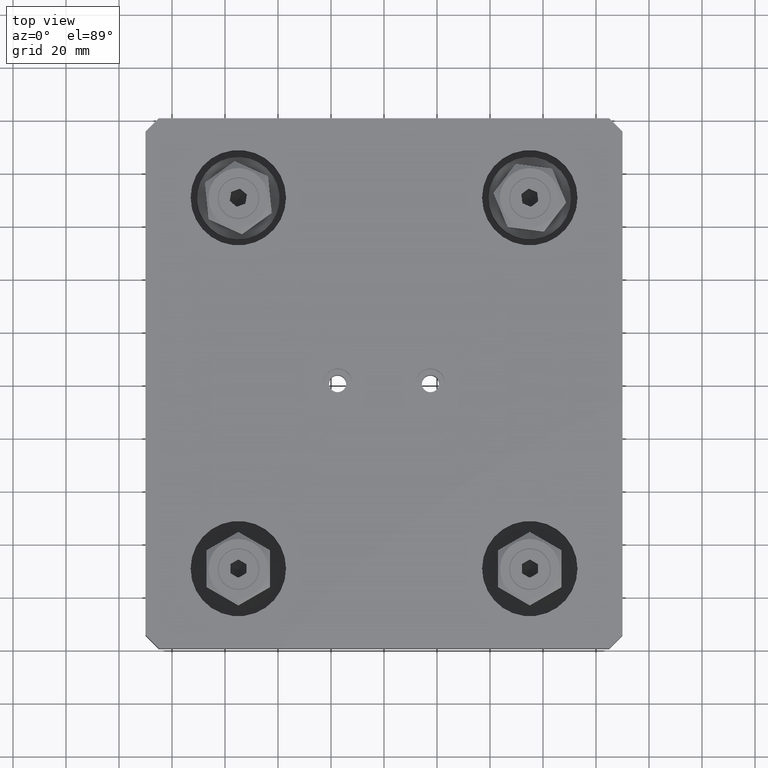
[diagram: clean part render]
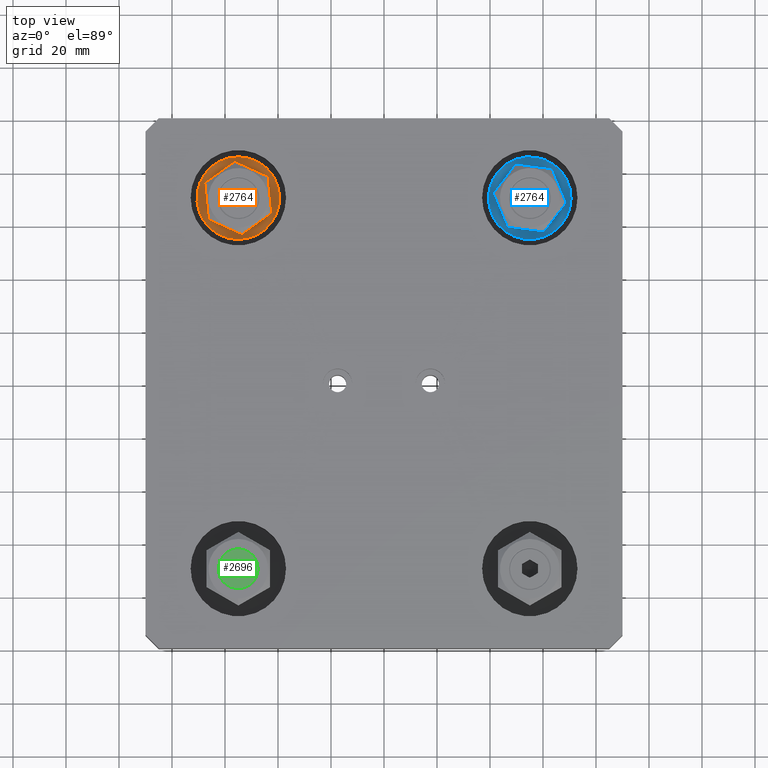
[diagram: same view with three faces highlighted in distinct colors, each labeled with its STEP entity id]
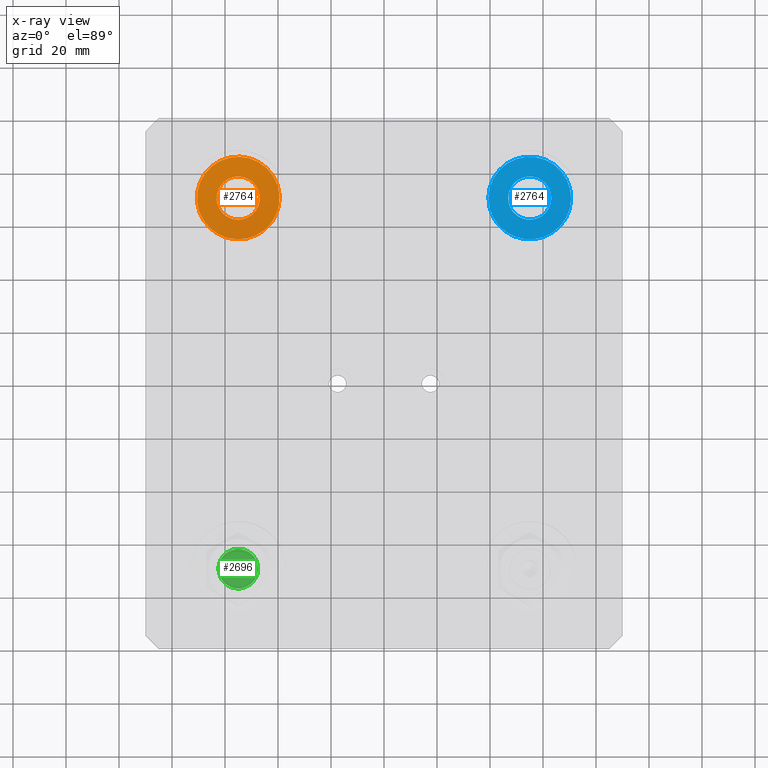
[diagram: x-ray of the same camera — body ghosted, the three highlighted faces saturated]
A machine part, top view with three faces highlighted in distinct colors.
The next image is the same camera in x-ray (body ghosted, the three faces saturated) — at least one of them is partly hidden behind the body in this view.
Their STEP definitions:

[orange] entity #2764 — the highlighted conical surface has half-angle 83.041 deg.
#99=CONICAL_SURFACE('',#3253,11.8742711850179,1.44933176903737);
#334=CIRCLE('',#3252,8.15);
#335=CIRCLE('',#3254,15.5985423700357);
#505=FACE_OUTER_BOUND('',#713,.T.);
#713=EDGE_LOOP('',(#2342,#2343,#2344,#2345));
#922=LINE('',#4835,#1137);
#1137=VECTOR('',#4015,11.8742711850179);
#1356=VERTEX_POINT('',#4830);
#1357=VERTEX_POINT('',#4834);
#1694=EDGE_CURVE('',#1356,#1356,#334,.T.);
#1695=EDGE_CURVE('',#1356,#1357,#922,.T.);
#1696=EDGE_CURVE('',#1357,#1357,#335,.T.);
#2342=ORIENTED_EDGE('',*,*,#1694,.T.);
#2343=ORIENTED_EDGE('',*,*,#1695,.T.);
#2344=ORIENTED_EDGE('',*,*,#1696,.F.);
#2345=ORIENTED_EDGE('',*,*,#1695,.F.);
#2764=ADVANCED_FACE('',(#505),#99,.F.);
#3252=AXIS2_PLACEMENT_3D('',#4832,#4011,#4012);
#3253=AXIS2_PLACEMENT_3D('',#4833,#4013,#4014);
#3254=AXIS2_PLACEMENT_3D('',#4836,#4016,#4017);
#4011=DIRECTION('center_axis',(-1.56640869658382E-17,1.,0.));
#4012=DIRECTION('ref_axis',(-1.,-1.76227961370045E-17,0.));
#4013=DIRECTION('center_axis',(1.56640869658382E-17,-1.,0.));
#4014=DIRECTION('ref_axis',(-1.,-1.76227961370045E-17,0.));
#4015=DIRECTION('',(0.992632245722649,-0.121166103971411,-1.21562390245469E-16));
#4016=DIRECTION('center_axis',(-1.56640869658382E-17,1.,0.));
#4017=DIRECTION('ref_axis',(-1.,-1.76227961370045E-17,0.));
#4830=CARTESIAN_POINT('',(8.15,0.909209692846688,-9.98087141305093E-16));
#4832=CARTESIAN_POINT('Origin',(-1.42419396989336E-17,0.909209692846688,
0.));
#4833=CARTESIAN_POINT('Origin',(-7.12096984946679E-18,0.454604846423344,
0.));
#4834=CARTESIAN_POINT('',(15.5985423700357,-4.16333634234434E-16,-1.91027049848286E-15));
#4835=CARTESIAN_POINT('',(11.8742711850179,0.454604846423344,-1.45417881989398E-15));
#4836=CARTESIAN_POINT('Origin',(7.70371977754894E-33,-5.55111512312578E-16,
0.));

[blue] entity #2764 — the highlighted conical surface has half-angle 83.041 deg.
#99=CONICAL_SURFACE('',#3253,11.8742711850179,1.44933176903737);
#334=CIRCLE('',#3252,8.15);
#335=CIRCLE('',#3254,15.5985423700357);
#505=FACE_OUTER_BOUND('',#713,.T.);
#713=EDGE_LOOP('',(#2342,#2343,#2344,#2345));
#922=LINE('',#4835,#1137);
#1137=VECTOR('',#4015,11.8742711850179);
#1356=VERTEX_POINT('',#4830);
#1357=VERTEX_POINT('',#4834);
#1694=EDGE_CURVE('',#1356,#1356,#334,.T.);
#1695=EDGE_CURVE('',#1356,#1357,#922,.T.);
#1696=EDGE_CURVE('',#1357,#1357,#335,.T.);
#2342=ORIENTED_EDGE('',*,*,#1694,.T.);
#2343=ORIENTED_EDGE('',*,*,#1695,.T.);
#2344=ORIENTED_EDGE('',*,*,#1696,.F.);
#2345=ORIENTED_EDGE('',*,*,#1695,.F.);
#2764=ADVANCED_FACE('',(#505),#99,.F.);
#3252=AXIS2_PLACEMENT_3D('',#4832,#4011,#4012);
#3253=AXIS2_PLACEMENT_3D('',#4833,#4013,#4014);
#3254=AXIS2_PLACEMENT_3D('',#4836,#4016,#4017);
#4011=DIRECTION('center_axis',(-1.56640869658382E-17,1.,0.));
#4012=DIRECTION('ref_axis',(-1.,-1.76227961370045E-17,0.));
#4013=DIRECTION('center_axis',(1.56640869658382E-17,-1.,0.));
#4014=DIRECTION('ref_axis',(-1.,-1.76227961370045E-17,0.));
#4015=DIRECTION('',(0.992632245722649,-0.121166103971411,-1.21562390245469E-16));
#4016=DIRECTION('center_axis',(-1.56640869658382E-17,1.,0.));
#4017=DIRECTION('ref_axis',(-1.,-1.76227961370045E-17,0.));
#4830=CARTESIAN_POINT('',(8.15,0.909209692846688,-9.98087141305093E-16));
#4832=CARTESIAN_POINT('Origin',(-1.42419396989336E-17,0.909209692846688,
0.));
#4833=CARTESIAN_POINT('Origin',(-7.12096984946679E-18,0.454604846423344,
0.));
#4834=CARTESIAN_POINT('',(15.5985423700357,-4.16333634234434E-16,-1.91027049848286E-15));
#4835=CARTESIAN_POINT('',(11.8742711850179,0.454604846423344,-1.45417881989398E-15));
#4836=CARTESIAN_POINT('Origin',(7.70371977754894E-33,-5.55111512312578E-16,
0.));

[green] entity #2696 — the highlighted planar face has unit normal (0, 0, -1).
#209=FACE_BOUND('',#630,.T.);
#278=CIRCLE('',#3123,7.5);
#437=FACE_OUTER_BOUND('',#629,.T.);
#629=EDGE_LOOP('',(#2073));
#630=EDGE_LOOP('',(#2074,#2075,#2076,#2077,#2078,#2079));
#829=LINE('',#4484,#1044);
#831=LINE('',#4488,#1046);
#833=LINE('',#4492,#1048);
#835=LINE('',#4496,#1050);
#837=LINE('',#4500,#1052);
#839=LINE('',#4503,#1054);
#1044=VECTOR('',#3606,10.);
#1046=VECTOR('',#3610,10.);
#1048=VECTOR('',#3614,10.);
#1050=VECTOR('',#3618,10.);
#1052=VECTOR('',#3622,10.);
#1054=VECTOR('',#3626,10.);
#1256=VERTEX_POINT('',#4481);
#1257=VERTEX_POINT('',#4483);
#1258=VERTEX_POINT('',#4487);
#1259=VERTEX_POINT('',#4491);
#1260=VERTEX_POINT('',#4495);
#1261=VERTEX_POINT('',#4499);
#1275=VERTEX_POINT('',#4544);
#1532=EDGE_CURVE('',#1257,#1256,#829,.T.);
#1534=EDGE_CURVE('',#1258,#1257,#831,.T.);
#1536=EDGE_CURVE('',#1259,#1258,#833,.T.);
#1538=EDGE_CURVE('',#1260,#1259,#835,.T.);
#1540=EDGE_CURVE('',#1261,#1260,#837,.T.);
#1542=EDGE_CURVE('',#1256,#1261,#839,.T.);
#1562=EDGE_CURVE('',#1275,#1275,#278,.T.);
#2073=ORIENTED_EDGE('',*,*,#1562,.F.);
#2074=ORIENTED_EDGE('',*,*,#1532,.T.);
#2075=ORIENTED_EDGE('',*,*,#1542,.T.);
#2076=ORIENTED_EDGE('',*,*,#1540,.T.);
#2077=ORIENTED_EDGE('',*,*,#1538,.T.);
#2078=ORIENTED_EDGE('',*,*,#1536,.T.);
#2079=ORIENTED_EDGE('',*,*,#1534,.T.);
#2573=PLANE('',#3125);
#2696=ADVANCED_FACE('',(#437,#209),#2573,.F.);
#3123=AXIS2_PLACEMENT_3D('',#4546,#3677,#3678);
#3125=AXIS2_PLACEMENT_3D('',#4549,#3682,#3683);
#3606=DIRECTION('',(0.,1.,0.));
#3610=DIRECTION('',(0.,0.5,-0.866025403784439));
#3614=DIRECTION('',(0.,-0.5,-0.866025403784439));
#3618=DIRECTION('',(0.,-1.,-4.80740671595891E-16));
#3622=DIRECTION('',(0.,-0.5,0.866025403784439));
#3626=DIRECTION('',(0.,0.5,0.866025403784438));
#3677=DIRECTION('center_axis',(1.,0.,0.));
#3678=DIRECTION('ref_axis',(0.,0.,-1.));
#3682=DIRECTION('center_axis',(1.,0.,0.));
#3683=DIRECTION('ref_axis',(0.,0.,-1.));
#4481=CARTESIAN_POINT('',(-24.,1.73205080756888,-3.));
#4483=CARTESIAN_POINT('',(-24.,-1.73205080756888,-3.));
#4484=CARTESIAN_POINT('',(-24.,0.866025403784438,-3.));
#4487=CARTESIAN_POINT('',(-24.,-3.46410161513776,-7.63278329429795E-16));
#4488=CARTESIAN_POINT('',(-24.,-2.1650635094611,-2.25));
#4491=CARTESIAN_POINT('',(-24.,-1.73205080756888,3.));
#4492=CARTESIAN_POINT('',(-24.,-3.03108891324554,0.749999999999999));
#4495=CARTESIAN_POINT('',(-24.,1.73205080756888,3.));
#4496=CARTESIAN_POINT('',(-24.,-0.86602540378444,3.));
#4499=CARTESIAN_POINT('',(-24.,3.46410161513776,-9.0205620750794E-16));
#4500=CARTESIAN_POINT('',(-24.,2.1650635094611,2.25));
#4503=CARTESIAN_POINT('',(-24.,3.03108891324554,-0.750000000000001));
#4544=CARTESIAN_POINT('',(-24.,-9.18485099360515E-16,7.5));
#4546=CARTESIAN_POINT('Origin',(-24.,0.,0.));
#4549=CARTESIAN_POINT('Origin',(-24.,0.,0.));